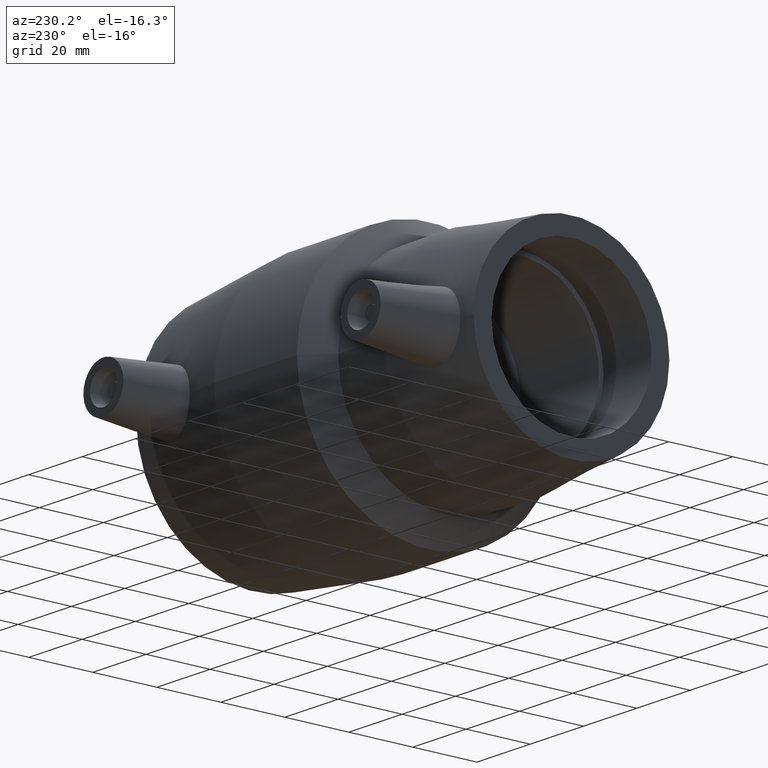
[diagram: clean part render]
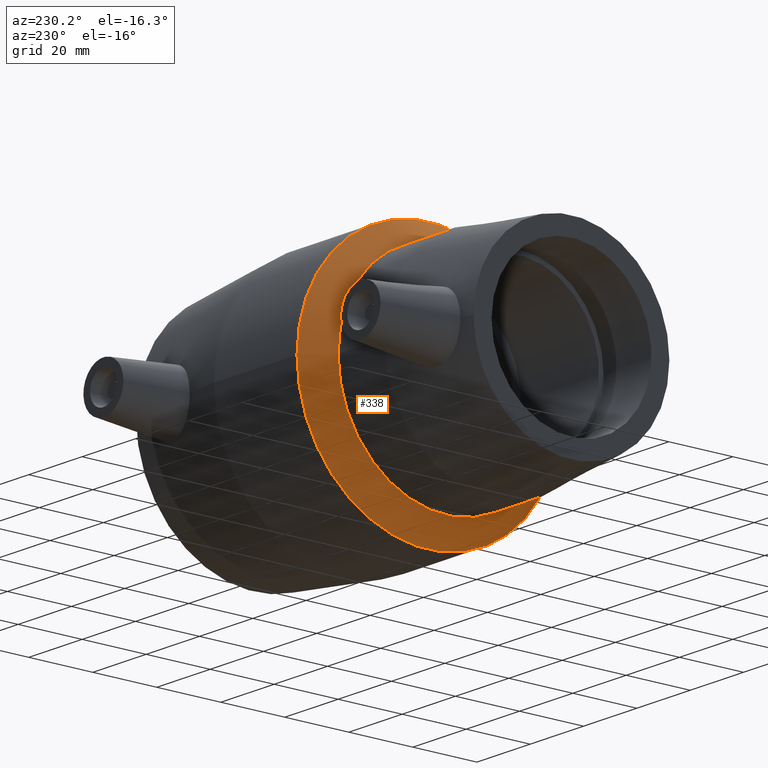
[diagram: same view with one face highlighted and labeled with its STEP entity id]
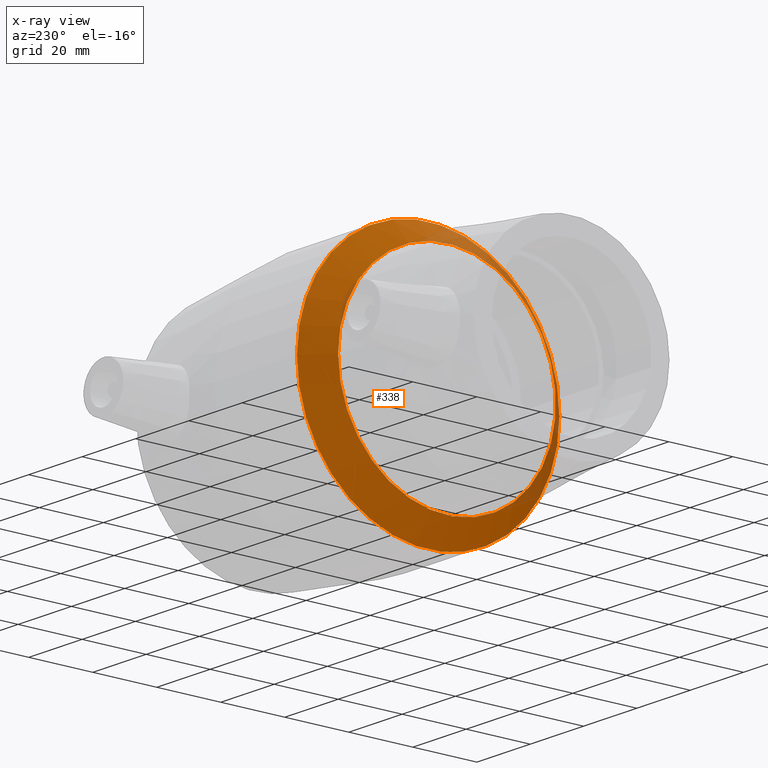
[diagram: x-ray of the same camera — body ghosted, the highlighted face saturated]
A machine part, auxiliary view. The second image highlights one B-rep face of the part: STEP entity #338.
The next image is the same camera in x-ray: the body ghosted, the highlighted face saturated — about 10% of this face is hidden behind the body in this view.
In plain terms, the highlighted conical surface has half-angle 45 deg.
Its self-contained STEP definition (entity closure, byte-faithful):
#19=CONICAL_SURFACE('',#383,37.5,45.);
#36=FACE_BOUND('',#123,.T.);
#80=FACE_OUTER_BOUND('',#122,.T.);
#122=EDGE_LOOP('',(#275));
#123=EDGE_LOOP('',(#276));
#170=CIRCLE('',#381,34.);
#172=CIRCLE('',#384,41.);
#201=VERTEX_POINT('',#644);
#203=VERTEX_POINT('',#649);
#232=EDGE_CURVE('',#201,#201,#170,.T.);
#234=EDGE_CURVE('',#203,#203,#172,.T.);
#275=ORIENTED_EDGE('',*,*,#234,.F.);
#276=ORIENTED_EDGE('',*,*,#232,.T.);
#338=ADVANCED_FACE('',(#80,#36),#19,.T.);
#381=AXIS2_PLACEMENT_3D('',#645,#466,#467);
#383=AXIS2_PLACEMENT_3D('',#648,#470,#471);
#384=AXIS2_PLACEMENT_3D('',#650,#472,#473);
#466=DIRECTION('center_axis',(1.,1.83697019872103E-16,0.));
#467=DIRECTION('ref_axis',(0.,0.,-1.));
#470=DIRECTION('center_axis',(1.,1.83697019872103E-16,0.));
#471=DIRECTION('ref_axis',(-2.07668631751007E-16,1.,0.));
#472=DIRECTION('center_axis',(1.,1.83697019872103E-16,0.));
#473=DIRECTION('ref_axis',(0.,0.,-1.));
#644=CARTESIAN_POINT('',(-12.775,34.,0.));
#645=CARTESIAN_POINT('Origin',(-12.775,8.58324325352401E-15,0.));
#648=CARTESIAN_POINT('Origin',(-9.27499999999999,9.22618282307637E-15,0.));
#649=CARTESIAN_POINT('',(-5.775,41.,0.));
#650=CARTESIAN_POINT('Origin',(-5.77499999999999,9.86912239262874E-15,0.));